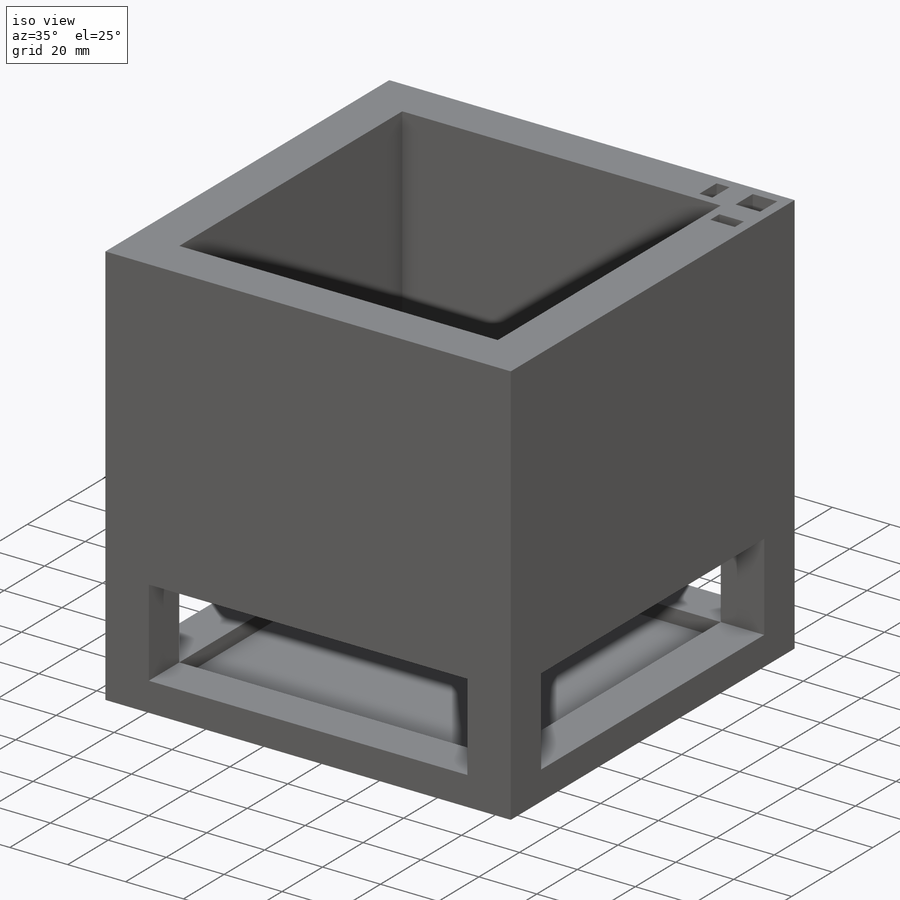
[diagram: iso view]
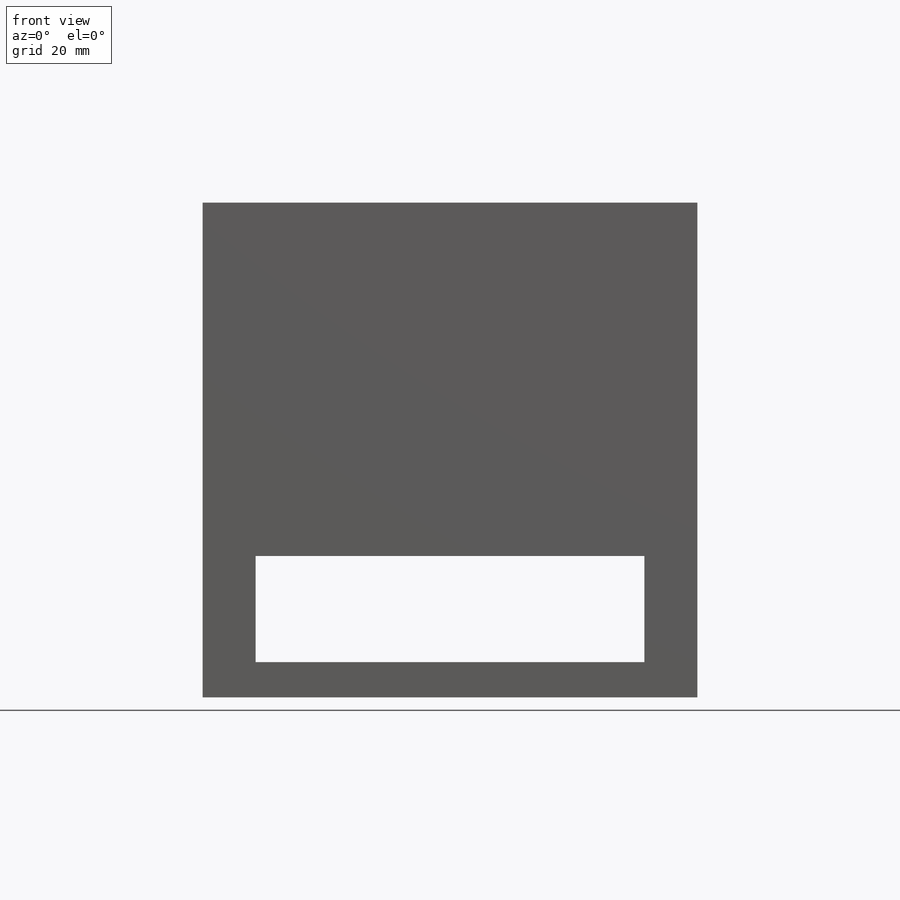
[diagram: front view]
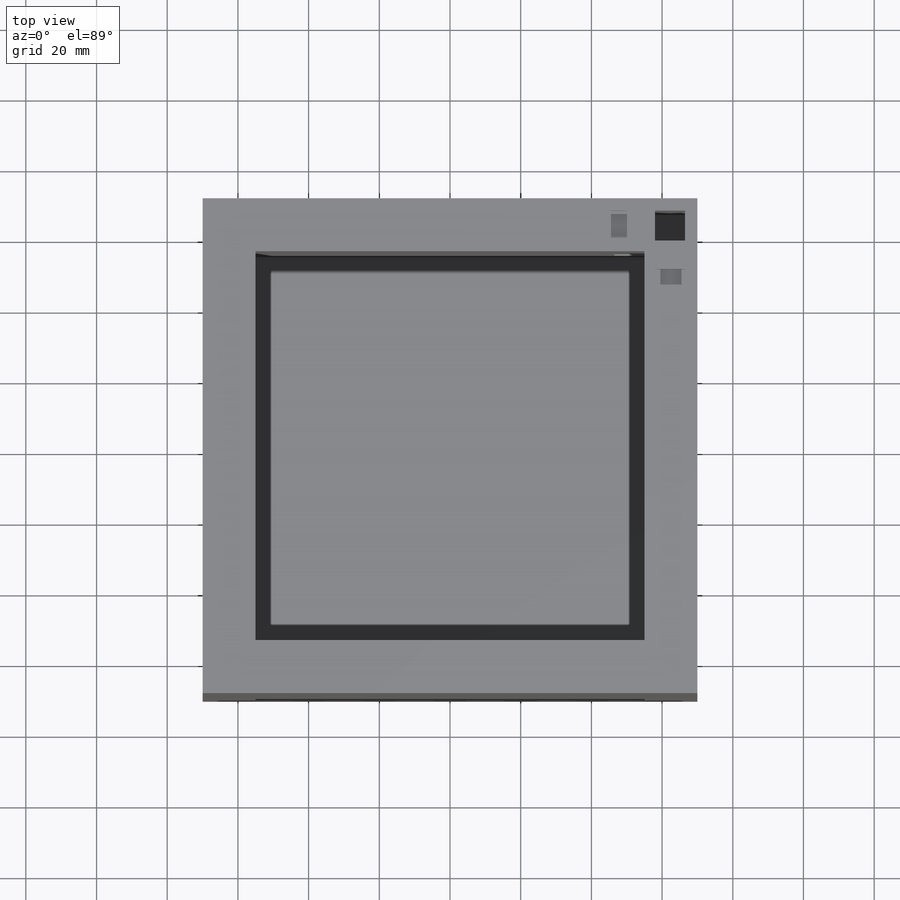
[diagram: top view]
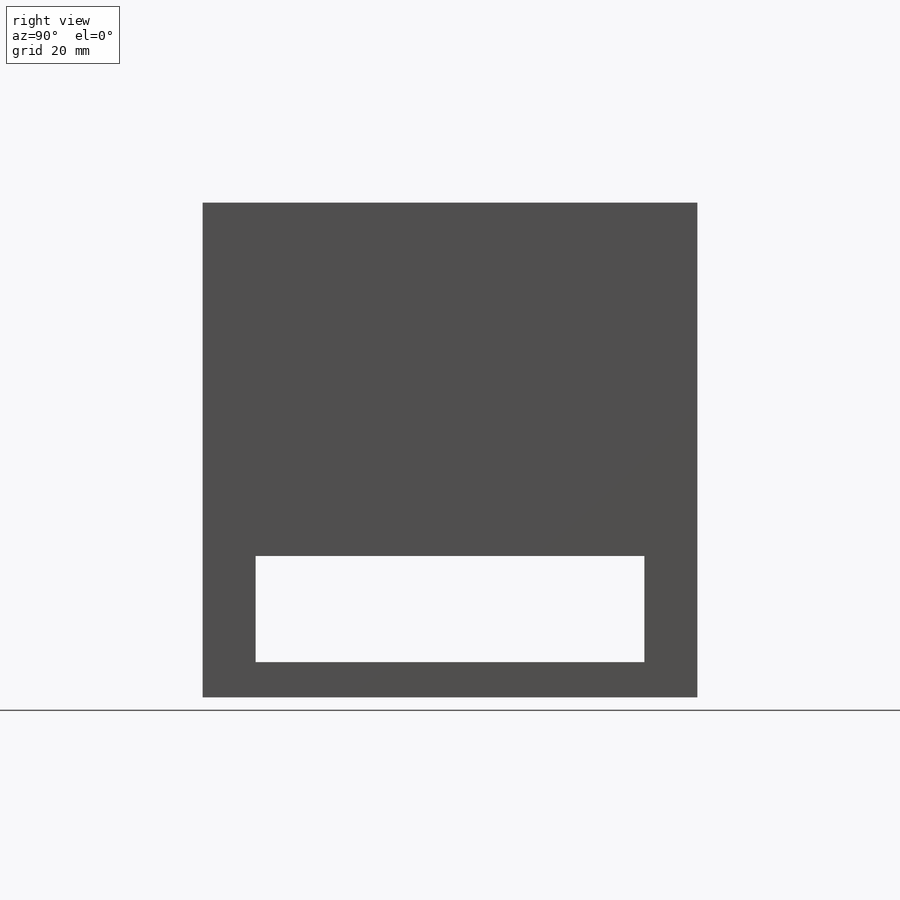
[diagram: right view]
SOLIDWORKS PART (.sldprt)
format: sldprt  version: not decoded by parser v0  size: 437,760 bytes
history: native  units: mm
features: sketch x21, extrude x8, cut_extrude x8, material x1 + 1 further entry (+11 scaffold rows collapsed)
feature tree (50):
  scaffold x11  (default folders/planes/origin — collapsed)
  material  "Material <not specified>"
  "Annotations"  RD1=10mm RD2=15mm RD3=10mm RD4=5mm RD5=26.494211mm RD6=20mm RD7=20mm RD8=3.5mm RD9=3.5mm RD10=12mm RD11=3mm RD12=3mm
  sketch  "Sketch1"  dims[D1=140.0mm D2=140.0mm]
  extrude  "Boss-Extrude1"  Depth=140mm
  sketch  "Sketch3"  dims[D1=110.0mm D2=110.0mm]
  cut_extrude  "Cut-Extrude1"  Depth=140mm
  sketch  "Sketch4"
  extrude  "Boss-Extrude2"  Depth=5mm
  sketch  "Sketch8"  dims[D1=3.5mm D2=8.5mm D3=8.5mm D4=3.5mm D5=3.0mm]
  cut_extrude  "Cut-Extrude4"  Depth=140mm
  sketch  "Sketch9"  dims[D1=8.5mm D2=8.5mm]
  sketch  "Sketch10"
  cut_extrude  "Cut-Extrude5"  Depth=100mm
  sketch  "Sketch11"
  sketch  "Sketch12"
  extrude  "Boss-Extrude4"  Depth=5mm
  sketch  "Sketch14"
  sketch  "Sketch18"
  extrude  "Boss-Extrude6"  Depth=70mm
  sketch  "Sketch19"
  extrude  "Boss-Extrude7"  Depth=70mm
  sketch  "Sketch24"  dims[D1=30.0mm D2=10.0mm D3=15.0mm D4=15.0mm D5=110.0mm]
  cut_extrude  "Cut-Extrude8"  Depth=70mm
  sketch  "Sketch25"  dims[D1=15.0mm D2=15.0mm D3=10.0mm D4=30.0mm D5=110.0mm]
  cut_extrude  "Cut-Extrude9"  Depth=70mm
  sketch  "Sketch26"  dims[D1=20.0mm D2=20.0mm D3=8.5mm D4=8.5mm D5=3.5mm D6=3.5mm D7=4.5mm D8=4.5mm D9=3.0mm]
  sketch  "Sketch27"
  sketch  "Sketch28"  dims[D1=20.0mm D2=4.5mm D3=4.5mm]
  cut_extrude  "Cut-Extrude10"  [1 undecoded]
  sketch  "Sketch29"  dims[c1.D1=20.0mm c1.D2=4.5mm c2.D1=20.0mm c2.D3=4.5mm]
  cut_extrude  "Cut-Extrude11"  Depth=66.5mm
  sketch  "Sketch30"  dims[D1=4.5mm D2=4.5mm D3=20.0mm]
  extrude  "Boss-Extrude8"  Depth=58mm
  sketch  "Sketch32"  dims[D1=4.5mm D2=4.5mm D3=20.0mm]
  extrude  "Boss-Extrude9"  Depth=58mm
  sketch  "Sketch34"
  cut_extrude  "Cut-Extrude20"  Depth=140mm
  sketch  "Sketch35"
  extrude  "Boss-Extrude10"  Depth=5mm
decode coverage: 26 of 37 modeling features carry decoded parameters; 1 rows unclassified (native names shown)
note: 1 parameter value undecoded
note: suppression state not decoded; provenance and decode notes live in map.json
